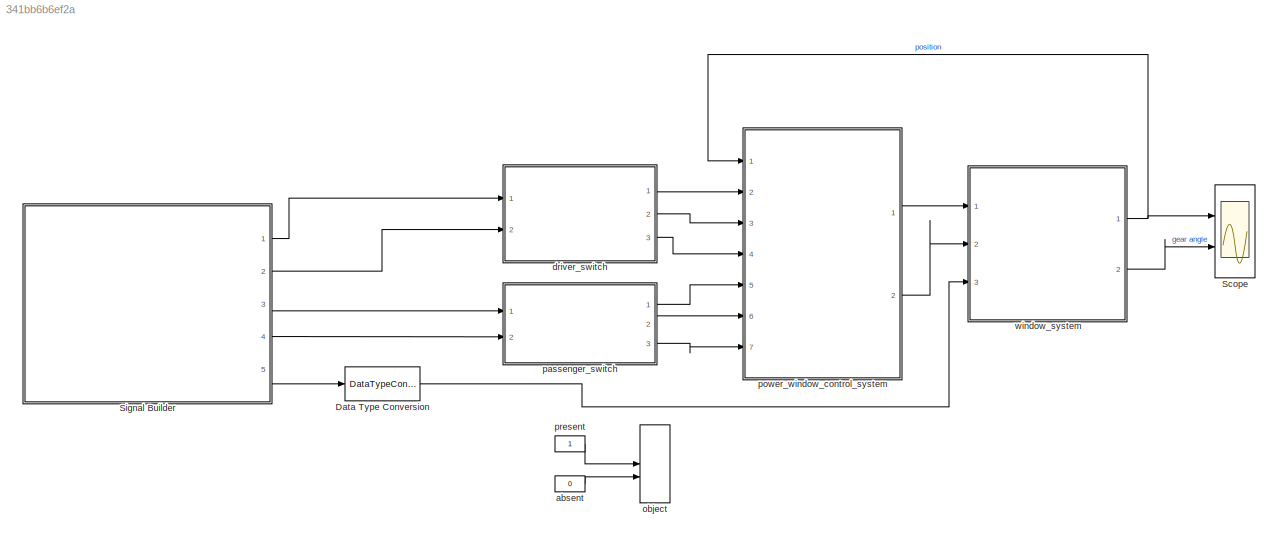
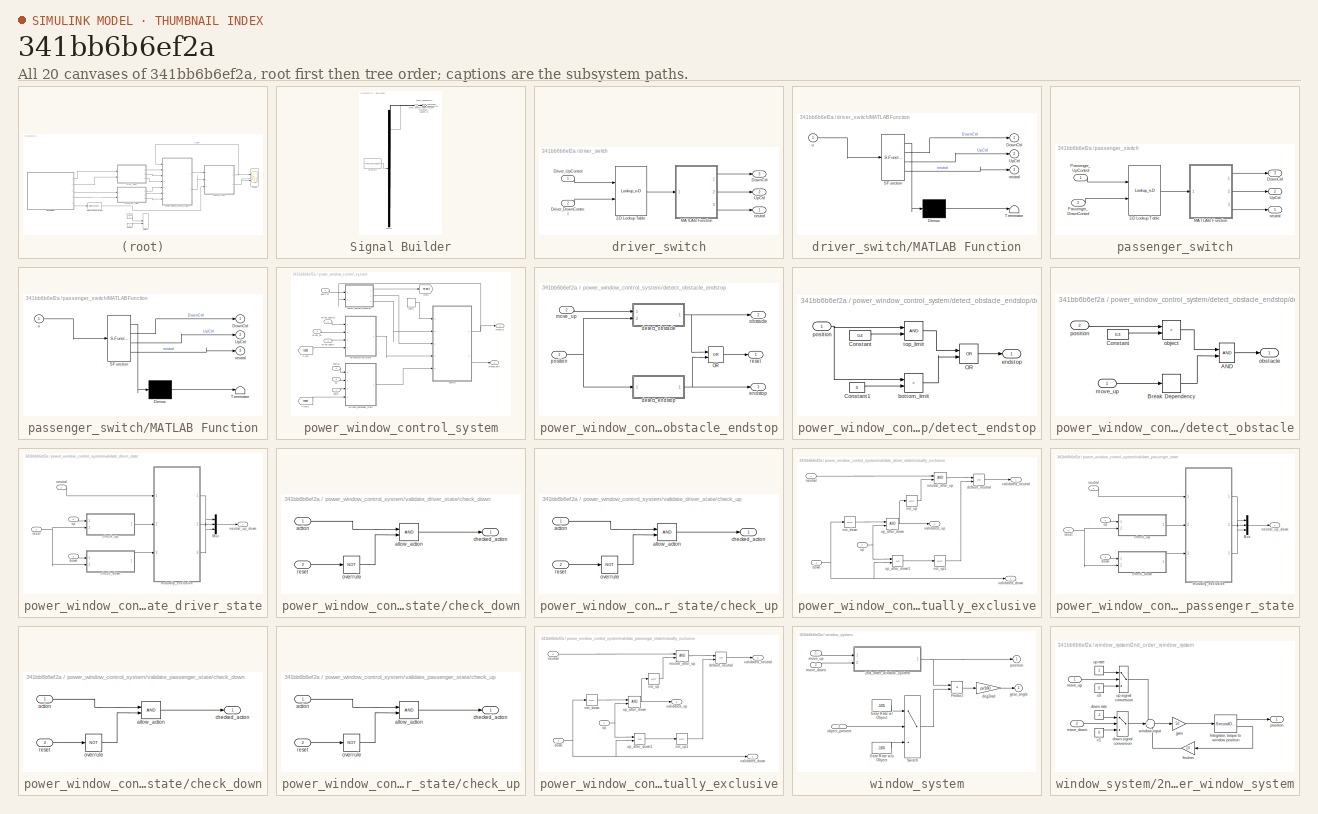
[diagram: thumbnail index - all 20 canvases of the model, root first then tree order]
MODEL slx_341bb6b6ef2a
KIND model
CONFIG AbsTol = auto
CONFIG EnableMultiTasking = off
CONFIG FixedStep = auto
CONFIG MaxStep = auto
CONFIG MinStep = auto
CONFIG RelTol = 1e-3
CONFIG SampleTimeConstraint = Unconstrained
CONFIG SolverName = ode23
CONFIG StartFcn = openscope
CONFIG StartTime = 0.0
CONFIG StopTime = 20
BLOCK [DataTypeConversion] Data Type Conversion
  OutDataTypeStr = boolean
  RndMeth = Floor
  SaturateOnIntegerOverflow = off
BLOCK [Scope] Scope
  Floating = off
  NumInputPorts = 2
  Ports = [2]
  ScopeSpecificationString = Simulink.scopes.TimeScopeBlockCfg('CurrentConfiguration', extmgr.ConfigurationSet(extmgr.Configuration('Core','General UI',true),extmgr.Configuration('Core','Source UI',true),extmgr.Configuration('Sources','WiredSimulink',true),extmgr.Configuration('Visuals','Time Domain',true,'SerializedDisplays',{struct('MinYLimReal','-0.05012','MaxYLimReal','0.45112','YLabelReal','','MinYLimMag','0.00000','MaxY...<+2034ch>
BLOCK [SubSystem] Signal Builder
  ClipboardFcn = sigbuilder_block('clipboard');
  CloseFcn = sigbuilder_block('close');
  ContinueFcn = sigbuilder_block('continue');
  CopyFcn = sigbuilder_block('copy');
  DeleteFcn = sigbuilder_block('delete');
  LoadFcn = sigbuilder_block('load');
  MaskHideContents = on
  ModelCloseFcn = sigbuilder_block('modelClose');
  NameChangeFcn = sigbuilder_block('namechange');
  OpenFcn = sigbuilder_block('open',[16.5 42.75 550.5 359.25 ]);
  PauseFcn = sigbuilder_block('pause');
  Ports = [0, 5]
  PreSaveFcn = sigbuilder_block('preSave');
  RequestExecContextInheritance = off
  StartFcn = sigbuilder_block('start');
  StopFcn = sigbuilder_block('stop');
  Tag = STV Subsys
BLOCK [Demux] Signal Builder/Demux
  DisplayOption = none
  Outputs = 5
  Ports = [1, 5]
  Tag = STV Demux
BLOCK [Outport] Signal Builder/Driver_DownControl
  Port = 2
  Tag = STV Outport
BLOCK [Outport] Signal Builder/Driver_UpControl
  Tag = STV Outport
BLOCK [FromWorkspace] Signal Builder/FromWs
  Tag = STV FromWs
  VariableName = tuvar
BLOCK [Outport] Signal Builder/Passenger_DownControl
  Port = 4
  Tag = STV Outport
BLOCK [Outport] Signal Builder/Passenger_UpControl
  Port = 3
  Tag = STV Outport
BLOCK [Outport] Signal Builder/objectPresent
  Port = 5
  Tag = STV Outport
BLOCK [Constant] absent
  Commented = on
  Value = 0
BLOCK [SubSystem] driver_switch
  Ports = [2, 3]
  RequestExecContextInheritance = off
BLOCK [Lookup_n-D] driver_switch/2-D Lookup Table
  BreakpointsForDimension1 = [0:1]
  BreakpointsForDimension2 = [0:1]
  InputPortMap = u0,u1
  InternalRulePriority = Speed
  Ports = [2, 1]
  RndMeth = Simplest
  Table = [0 -1;1 0]
BLOCK [Outport] driver_switch/DownCtrl
  Port = 3
BLOCK [Inport] driver_switch/Driver_DownControl
  Port = 2
BLOCK [Inport] driver_switch/Driver_UpControl
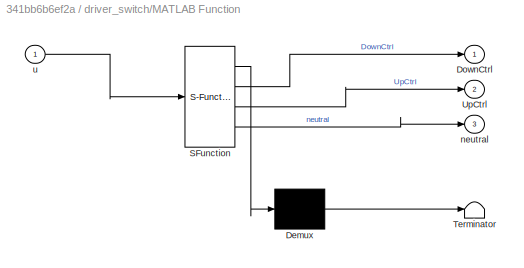
BLOCK [SubSystem] driver_switch/MATLAB Function
  ErrorFcn = Stateflow.Translate.translate
  PermitHierarchicalResolution = ExplicitOnly
  Ports = [1, 3]
  RequestExecContextInheritance = off
  SFBlockType = MATLAB Function
  TreatAsAtomicUnit = on
BLOCK [Demux] driver_switch/MATLAB Function/ Demux 
  Outputs = 1
  Ports = [1, 1]
BLOCK [S-Function] driver_switch/MATLAB Function/ SFunction 
  EnableBusSupport = on
  FunctionName = sf_sfun
  PortCounts = [1 4]
  Ports = [1, 4]
  SFcnIsStateOwnerBlock = off
  SFunctionDeploymentMode = off
  Tag = Stateflow S-Function 2
BLOCK [Terminator] driver_switch/MATLAB Function/ Terminator 
BLOCK [Outport] driver_switch/MATLAB Function/DownCtrl
BLOCK [Outport] driver_switch/MATLAB Function/UpCtrl
  Port = 2
BLOCK [Outport] driver_switch/MATLAB Function/neutral
  Port = 3
BLOCK [Inport] driver_switch/MATLAB Function/u
BLOCK [Outport] driver_switch/UpCtrl
  Port = 2
BLOCK [Outport] driver_switch/neutral
BLOCK [ManualSwitch] object
  Commented = on
BLOCK [SubSystem] passenger_switch
  Ports = [2, 3]
  RequestExecContextInheritance = off
BLOCK [Lookup_n-D] passenger_switch/2-D Lookup Table
  BreakpointsForDimension1 = [0:1]
  BreakpointsForDimension2 = [0:1]
  InputPortMap = u0,u1
  InternalRulePriority = Speed
  Ports = [2, 1]
  RndMeth = Simplest
  Table = [0 -1;1 0]
BLOCK [Outport] passenger_switch/DownCtrl
  Port = 3
BLOCK [SubSystem] passenger_switch/MATLAB Function
  ErrorFcn = Stateflow.Translate.translate
  PermitHierarchicalResolution = ExplicitOnly
  Ports = [1, 3]
  RequestExecContextInheritance = off
  SFBlockType = MATLAB Function
  TreatAsAtomicUnit = on
BLOCK [Demux] passenger_switch/MATLAB Function/ Demux 
  Outputs = 1
  Ports = [1, 1]
BLOCK [S-Function] passenger_switch/MATLAB Function/ SFunction 
  EnableBusSupport = on
  FunctionName = sf_sfun
  PortCounts = [1 4]
  Ports = [1, 4]
  SFcnIsStateOwnerBlock = off
  SFunctionDeploymentMode = off
  Tag = Stateflow S-Function 1
BLOCK [Terminator] passenger_switch/MATLAB Function/ Terminator 
BLOCK [Outport] passenger_switch/MATLAB Function/DownCtrl
BLOCK [Outport] passenger_switch/MATLAB Function/UpCtrl
  Port = 2
BLOCK [Outport] passenger_switch/MATLAB Function/neutral
  Port = 3
BLOCK [Inport] passenger_switch/MATLAB Function/u
BLOCK [Inport] passenger_switch/Passenger_DownControl
  Port = 2
BLOCK [Inport] passenger_switch/Passenger_UpControl
BLOCK [Outport] passenger_switch/UpCtrl
  Port = 2
BLOCK [Outport] passenger_switch/neutral
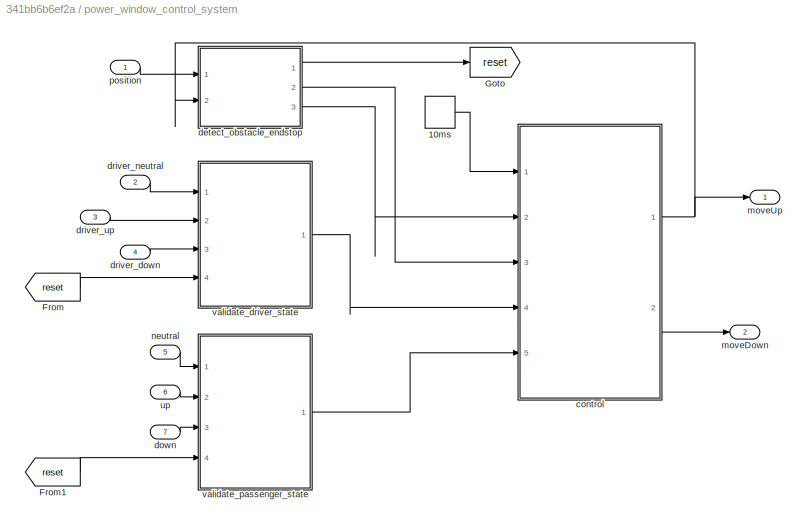
BLOCK [SubSystem] power_window_control_system
  Ports = [7, 2]
  RequestExecContextInheritance = off
BLOCK [DiscretePulseGenerator] power_window_control_system/10ms
  Ports = [0, 1]
  SampleTime = 10e-3
BLOCK [From] power_window_control_system/From
  GotoTag = reset
BLOCK [From] power_window_control_system/From1
  GotoTag = reset
BLOCK [Goto] power_window_control_system/Goto
  GotoTag = reset
BLOCK [ModelReference] power_window_control_system/control
  ModelNameDialog = control
  ModelReferenceVersion = 1.12
  PortSchema = {"entries":[{"content":{"sides":[{"content":{"connectorIds":["In1","In3","In2","In4","In5"]},"type":"ConnectorPlacement.EquallySpacedRectSide","uuid":"1ff5d317-0497-494f-a61b-2fc0f24ed70a"},{"content":{"connectorIds":["Out1","Out2"],"side":"RIGHT"},"type":"ConnectorPlacement.EquallySpacedRectSide","uuid":"3af128ce-8d16-44e6-af9b-8a4db41ce529"},{"content":{"connectorIds":[],"side":"TOP"},"type":"Co...<+415ch>
  Ports = [5, 2]
BLOCK [SubSystem] power_window_control_system/detect_obstacle_endstop
  Ports = [2, 3]
  RequestExecContextInheritance = off
BLOCK [Logic] power_window_control_system/detect_obstacle_endstop/OR
  AllPortsSameDT = off
  IconShape = distinctive
  Operator = OR
  OutDataTypeStr = boolean
  Ports = [2, 1]
BLOCK [SubSystem] power_window_control_system/detect_obstacle_endstop/detect_endstop
  Ports = [1, 1]
  RequestExecContextInheritance = off
BLOCK [Constant] power_window_control_system/detect_obstacle_endstop/detect_endstop/Constant
  Value = 0.4
BLOCK [Constant] power_window_control_system/detect_obstacle_endstop/detect_endstop/Constant1
  Value = 0
BLOCK [Logic] power_window_control_system/detect_obstacle_endstop/detect_endstop/OR
  AllPortsSameDT = off
  IconShape = distinctive
  Operator = OR
  OutDataTypeStr = boolean
  Ports = [2, 1]
BLOCK [RelationalOperator] power_window_control_system/detect_obstacle_endstop/detect_endstop/bottom_limit
  InputSameDT = off
  Operator = <
  OutDataTypeStr = boolean
  Ports = [2, 1]
  RndMeth = Simplest
BLOCK [Outport] power_window_control_system/detect_obstacle_endstop/detect_endstop/endstop
BLOCK [Inport] power_window_control_system/detect_obstacle_endstop/detect_endstop/position
BLOCK [RelationalOperator] power_window_control_system/detect_obstacle_endstop/detect_endstop/top_limit
  InputSameDT = off
  OutDataTypeStr = boolean
  Ports = [2, 1]
  RndMeth = Simplest
BLOCK [SubSystem] power_window_control_system/detect_obstacle_endstop/detect_obstacle
  Ports = [2, 1]
  RequestExecContextInheritance = off
BLOCK [Logic] power_window_control_system/detect_obstacle_endstop/detect_obstacle/AND
  AllPortsSameDT = off
  IconShape = distinctive
  OutDataTypeStr = boolean
  Ports = [2, 1]
BLOCK [Memory] power_window_control_system/detect_obstacle_endstop/detect_obstacle/Break Dependency
BLOCK [Constant] power_window_control_system/detect_obstacle_endstop/detect_obstacle/Constant
  Value = 0.3
BLOCK [Inport] power_window_control_system/detect_obstacle_endstop/detect_obstacle/move_up
BLOCK [RelationalOperator] power_window_control_system/detect_obstacle_endstop/detect_obstacle/object
  InputSameDT = off
  Operator = >
  OutDataTypeStr = boolean
  Ports = [2, 1]
  RndMeth = Simplest
BLOCK [Outport] power_window_control_system/detect_obstacle_endstop/detect_obstacle/obstacle
BLOCK [Inport] power_window_control_system/detect_obstacle_endstop/detect_obstacle/position
  Port = 2
BLOCK [Outport] power_window_control_system/detect_obstacle_endstop/endstop
  Port = 3
BLOCK [Inport] power_window_control_system/detect_obstacle_endstop/move_up
  Port = 2
BLOCK [Outport] power_window_control_system/detect_obstacle_endstop/obstacle
  Port = 2
BLOCK [Inport] power_window_control_system/detect_obstacle_endstop/position
BLOCK [Outport] power_window_control_system/detect_obstacle_endstop/reset
BLOCK [Inport] power_window_control_system/down
  Port = 7
BLOCK [Inport] power_window_control_system/driver_down
  Port = 4
BLOCK [Inport] power_window_control_system/driver_neutral
  Port = 2
BLOCK [Inport] power_window_control_system/driver_up
  Port = 3
BLOCK [Outport] power_window_control_system/moveDown
  Port = 2
BLOCK [Outport] power_window_control_system/moveUp
BLOCK [Inport] power_window_control_system/neutral
  Port = 5
BLOCK [Inport] power_window_control_system/position
BLOCK [Inport] power_window_control_system/up
  Port = 6
BLOCK [SubSystem] power_window_control_system/validate_driver_state
  Ports = [4, 1]
  RequestExecContextInheritance = off
BLOCK [Mux] power_window_control_system/validate_driver_state/Mux
  DisplayOption = bar
  Inputs = 3
  Ports = [3, 1]
BLOCK [SubSystem] power_window_control_system/validate_driver_state/check_down
  Ports = [2, 1]
  RequestExecContextInheritance = off
BLOCK [Inport] power_window_control_system/validate_driver_state/check_down/action
BLOCK [Logic] power_window_control_system/validate_driver_state/check_down/allow_action
  AllPortsSameDT = off
  IconShape = distinctive
  OutDataTypeStr = boolean
  Ports = [2, 1]
BLOCK [Outport] power_window_control_system/validate_driver_state/check_down/checked_action
BLOCK [Logic] power_window_control_system/validate_driver_state/check_down/overrule
  AllPortsSameDT = off
  IconShape = distinctive
  Operator = NOT
  OutDataTypeStr = boolean
  Ports = [1, 1]
BLOCK [Inport] power_window_control_system/validate_driver_state/check_down/reset
  Port = 2
BLOCK [SubSystem] power_window_control_system/validate_driver_state/check_up
  Ports = [2, 1]
  RequestExecContextInheritance = off
BLOCK [Inport] power_window_control_system/validate_driver_state/check_up/action
BLOCK [Logic] power_window_control_system/validate_driver_state/check_up/allow_action
  AllPortsSameDT = off
  IconShape = distinctive
  OutDataTypeStr = boolean
  Ports = [2, 1]
BLOCK [Outport] power_window_control_system/validate_driver_state/check_up/checked_action
BLOCK [Logic] power_window_control_system/validate_driver_state/check_up/overrule
  AllPortsSameDT = off
  IconShape = distinctive
  Operator = NOT
  OutDataTypeStr = boolean
  Ports = [1, 1]
BLOCK [Inport] power_window_control_system/validate_driver_state/check_up/reset
  Port = 2
BLOCK [Inport] power_window_control_system/validate_driver_state/down
  Port = 3
BLOCK [SubSystem] power_window_control_system/validate_driver_state/mutually_exclusive
  Ports = [3, 3]
  RequestExecContextInheritance = off
BLOCK [Logic] power_window_control_system/validate_driver_state/mutually_exclusive/default_neutral
  AllPortsSameDT = off
  IconShape = distinctive
  Operator = OR
  OutDataTypeStr = boolean
  Ports = [2, 1]
BLOCK [Inport] power_window_control_system/validate_driver_state/mutually_exclusive/down
  Port = 3
BLOCK [Inport] power_window_control_system/validate_driver_state/mutually_exclusive/neutral
BLOCK [Logic] power_window_control_system/validate_driver_state/mutually_exclusive/neutral_after_up
  AllPortsSameDT = off
  IconShape = distinctive
  OutDataTypeStr = boolean
  Ports = [2, 1]
BLOCK [Logic] power_window_control_system/validate_driver_state/mutually_exclusive/not_down
  AllPortsSameDT = off
  IconShape = distinctive
  Operator = NOT
  OutDataTypeStr = boolean
  Ports = [1, 1]
BLOCK [Logic] power_window_control_system/validate_driver_state/mutually_exclusive/not_up
  AllPortsSameDT = off
  IconShape = distinctive
  Operator = NOT
  OutDataTypeStr = boolean
  Ports = [1, 1]
BLOCK [Logic] power_window_control_system/validate_driver_state/mutually_exclusive/not_up1
  AllPortsSameDT = off
  IconShape = distinctive
  Operator = NOT
  OutDataTypeStr = boolean
  Ports = [1, 1]
BLOCK [Inport] power_window_control_system/validate_driver_state/mutually_exclusive/up
  Port = 2
BLOCK [Logic] power_window_control_system/validate_driver_state/mutually_exclusive/up_after_down
  AllPortsSameDT = off
  IconShape = distinctive
  OutDataTypeStr = boolean
  Ports = [2, 1]
BLOCK [Logic] power_window_control_system/validate_driver_state/mutually_exclusive/up_after_down1
  AllPortsSameDT = off
  IconShape = distinctive
  Operator = OR
  OutDataTypeStr = boolean
  Ports = [2, 1]
BLOCK [Outport] power_window_control_system/validate_driver_state/mutually_exclusive/validated_down
  Port = 3
BLOCK [Outport] power_window_control_system/validate_driver_state/mutually_exclusive/validated_neutral
BLOCK [Outport] power_window_control_system/validate_driver_state/mutually_exclusive/validated_up
  Port = 2
BLOCK [Inport] power_window_control_system/validate_driver_state/neutral
BLOCK [Outport] power_window_control_system/validate_driver_state/neutral_up_down
BLOCK [Inport] power_window_control_system/validate_driver_state/reset
  Port = 4
BLOCK [Inport] power_window_control_system/validate_driver_state/up
  Port = 2
BLOCK [SubSystem] power_window_control_system/validate_passenger_state
  Ports = [4, 1]
  RequestExecContextInheritance = off
BLOCK [Mux] power_window_control_system/validate_passenger_state/Mux
  DisplayOption = bar
  Inputs = 3
  Ports = [3, 1]
BLOCK [SubSystem] power_window_control_system/validate_passenger_state/check_down
  Ports = [2, 1]
  RequestExecContextInheritance = off
BLOCK [Inport] power_window_control_system/validate_passenger_state/check_down/action
BLOCK [Logic] power_window_control_system/validate_passenger_state/check_down/allow_action
  AllPortsSameDT = off
  IconShape = distinctive
  OutDataTypeStr = boolean
  Ports = [2, 1]
BLOCK [Outport] power_window_control_system/validate_passenger_state/check_down/checked_action
BLOCK [Logic] power_window_control_system/validate_passenger_state/check_down/overrule
  AllPortsSameDT = off
  IconShape = distinctive
  Operator = NOT
  OutDataTypeStr = boolean
  Ports = [1, 1]
BLOCK [Inport] power_window_control_system/validate_passenger_state/check_down/reset
  Port = 2
BLOCK [SubSystem] power_window_control_system/validate_passenger_state/check_up
  Ports = [2, 1]
  RequestExecContextInheritance = off
BLOCK [Inport] power_window_control_system/validate_passenger_state/check_up/action
BLOCK [Logic] power_window_control_system/validate_passenger_state/check_up/allow_action
  AllPortsSameDT = off
  IconShape = distinctive
  OutDataTypeStr = boolean
  Ports = [2, 1]
BLOCK [Outport] power_window_control_system/validate_passenger_state/check_up/checked_action
BLOCK [Logic] power_window_control_system/validate_passenger_state/check_up/overrule
  AllPortsSameDT = off
  IconShape = distinctive
  Operator = NOT
  OutDataTypeStr = boolean
  Ports = [1, 1]
BLOCK [Inport] power_window_control_system/validate_passenger_state/check_up/reset
  Port = 2
BLOCK [Inport] power_window_control_system/validate_passenger_state/down
  Port = 3
BLOCK [SubSystem] power_window_control_system/validate_passenger_state/mutually_exclusive
  Ports = [3, 3]
  RequestExecContextInheritance = off
BLOCK [Logic] power_window_control_system/validate_passenger_state/mutually_exclusive/default_neutral
  AllPortsSameDT = off
  IconShape = distinctive
  Operator = OR
  OutDataTypeStr = boolean
  Ports = [2, 1]
BLOCK [Inport] power_window_control_system/validate_passenger_state/mutually_exclusive/down
  Port = 3
BLOCK [Inport] power_window_control_system/validate_passenger_state/mutually_exclusive/neutral
BLOCK [Logic] power_window_control_system/validate_passenger_state/mutually_exclusive/neutral_after_up
  AllPortsSameDT = off
  IconShape = distinctive
  OutDataTypeStr = boolean
  Ports = [2, 1]
BLOCK [Logic] power_window_control_system/validate_passenger_state/mutually_exclusive/not_down
  AllPortsSameDT = off
  IconShape = distinctive
  Operator = NOT
  OutDataTypeStr = boolean
  Ports = [1, 1]
BLOCK [Logic] power_window_control_system/validate_passenger_state/mutually_exclusive/not_up
  AllPortsSameDT = off
  IconShape = distinctive
  Operator = NOT
  OutDataTypeStr = boolean
  Ports = [1, 1]
BLOCK [Logic] power_window_control_system/validate_passenger_state/mutually_exclusive/not_up1
  AllPortsSameDT = off
  IconShape = distinctive
  Operator = NOT
  OutDataTypeStr = boolean
  Ports = [1, 1]
BLOCK [Inport] power_window_control_system/validate_passenger_state/mutually_exclusive/up
  Port = 2
BLOCK [Logic] power_window_control_system/validate_passenger_state/mutually_exclusive/up_after_down
  AllPortsSameDT = off
  IconShape = distinctive
  OutDataTypeStr = boolean
  Ports = [2, 1]
BLOCK [Logic] power_window_control_system/validate_passenger_state/mutually_exclusive/up_after_down1
  AllPortsSameDT = off
  IconShape = distinctive
  Operator = OR
  OutDataTypeStr = boolean
  Ports = [2, 1]
BLOCK [Outport] power_window_control_system/validate_passenger_state/mutually_exclusive/validated_down
  Port = 3
BLOCK [Outport] power_window_control_system/validate_passenger_state/mutually_exclusive/validated_neutral
BLOCK [Outport] power_window_control_system/validate_passenger_state/mutually_exclusive/validated_up
  Port = 2
BLOCK [Inport] power_window_control_system/validate_passenger_state/neutral
BLOCK [Outport] power_window_control_system/validate_passenger_state/neutral_up_down
BLOCK [Inport] power_window_control_system/validate_passenger_state/reset
  Port = 4
BLOCK [Inport] power_window_control_system/validate_passenger_state/up
  Port = 2
BLOCK [Constant] present
  Commented = on
BLOCK [SubSystem] window_system
  Ports = [3, 2]
  RequestExecContextInheritance = off
BLOCK [SubSystem] window_system/2nd_order_window_system
  Ports = [2, 1]
  RequestExecContextInheritance = off
BLOCK [SecondOrderIntegrator] window_system/2nd_order_window_system/Integrator, torque to window position 
  Ports = [1, 2]
BLOCK [Constant] window_system/2nd_order_window_system/c0
  Value = 0
BLOCK [Constant] window_system/2nd_order_window_system/c1
  Value = 0
BLOCK [Constant] window_system/2nd_order_window_system/down rate
  NameLocation = top
  Value = -1
BLOCK [Switch] window_system/2nd_order_window_system/down signal conversion
  Threshold = 0.5
BLOCK [Gain] window_system/2nd_order_window_system/friction
  Gain = 10
  OutDataTypeStr = Inherit: Same as input
  ParamDataTypeStr = Inherit: Same as input
  SaturateOnIntegerOverflow = on
BLOCK [Gain] window_system/2nd_order_window_system/gain
  Gain = 50
  OutDataTypeStr = Inherit: Same as input
  ParamDataTypeStr = Inherit: Same as input
  SaturateOnIntegerOverflow = on
BLOCK [Inport] window_system/2nd_order_window_system/move_down
  OutDataTypeStr = boolean
  Port = 2
  PortDimensions = 1
  Unit = 1
BLOCK [Inport] window_system/2nd_order_window_system/move_up
  OutDataTypeStr = boolean
  PortDimensions = 1
  Unit = 1
BLOCK [Outport] window_system/2nd_order_window_system/position
  OutDataTypeStr = double
  PortDimensions = 1
  Unit = meter
  VectorParamsAs1DForOutWhenUnconnected = off
BLOCK [Constant] window_system/2nd_order_window_system/up rate
  NameLocation = top
BLOCK [Switch] window_system/2nd_order_window_system/up signal conversion
  Threshold = 0.5
BLOCK [Sum] window_system/2nd_order_window_system/window input
  InputSameDT = on
  Inputs = ++-
  OutDataTypeStr = Inherit: Same as first input
  Ports = [3, 1]
  SaturateOnIntegerOverflow = on
BLOCK [Constant] window_system/Gear Rate w// Object
  AttributesFormatString = Units: deg/m
  Value = -105
BLOCK [Constant] window_system/Gear Rate w//o Object
  AttributesFormatString = Units: deg/m
  Value = -160
BLOCK [Product] window_system/Product
  Ports = [2, 1]
BLOCK [Switch] window_system/Switch
  Criteria = u2 ~= 0
  InputSameDT = off
  SaturateOnIntegerOverflow = off
BLOCK [Gain] window_system/deg2rad
  Gain = pi/180
BLOCK [Outport] window_system/gear_angle
  OutDataTypeStr = double
  Port = 2
  PortDimensions = 1
  Unit = rad
  VectorParamsAs1DForOutWhenUnconnected = off
BLOCK [Inport] window_system/move_down
  OutDataTypeStr = boolean
  Port = 2
  PortDimensions = 1
  Unit = 1
BLOCK [Inport] window_system/move_up
  OutDataTypeStr = boolean
  PortDimensions = 1
  Unit = 1
BLOCK [Inport] window_system/object_present
  OutDataTypeStr = boolean
  Port = 3
  PortDimensions = 1
  Unit = 1
BLOCK [Outport] window_system/position
  OutDataTypeStr = double
  PortDimensions = 1
  Unit = m
  VectorParamsAs1DForOutWhenUnconnected = off
LINE Data Type Conversion:1 -> window_system:3
LINE Signal Builder:1 -> driver_switch:1
LINE Signal Builder:2 -> driver_switch:2
LINE Signal Builder:3 -> passenger_switch:1
LINE Signal Builder:4 -> passenger_switch:2
LINE Signal Builder:5 -> Data Type Conversion:1
LINE absent:1 -> object:2
LINE driver_switch/2-D Lookup Table:1 -> driver_switch/MATLAB Function:1
LINE driver_switch/Driver_DownControl:1 -> driver_switch/2-D Lookup Table:2
LINE driver_switch/Driver_UpControl:1 -> driver_switch/2-D Lookup Table:1
LINE driver_switch/MATLAB Function:1 -> driver_switch/DownCtrl:1
LINE driver_switch/MATLAB Function:2 -> driver_switch/UpCtrl:1
LINE driver_switch/MATLAB Function:3 -> driver_switch/neutral:1
LINE driver_switch:1 -> power_window_control_system:2
LINE driver_switch:2 -> power_window_control_system:3
LINE driver_switch:3 -> power_window_control_system:4
LINE passenger_switch/2-D Lookup Table:1 -> passenger_switch/MATLAB Function:1
LINE passenger_switch/MATLAB Function:1 -> passenger_switch/DownCtrl:1
LINE passenger_switch/MATLAB Function:2 -> passenger_switch/UpCtrl:1
LINE passenger_switch/MATLAB Function:3 -> passenger_switch/neutral:1
LINE passenger_switch/Passenger_DownControl:1 -> passenger_switch/2-D Lookup Table:2
LINE passenger_switch/Passenger_UpControl:1 -> passenger_switch/2-D Lookup Table:1
LINE passenger_switch:1 -> power_window_control_system:5
LINE passenger_switch:2 -> power_window_control_system:6
LINE passenger_switch:3 -> power_window_control_system:7
LINE power_window_control_system/10ms:1 -> power_window_control_system/control:1
LINE power_window_control_system/From1:1 -> power_window_control_system/validate_passenger_state:4
LINE power_window_control_system/From:1 -> power_window_control_system/validate_driver_state:4
NET power_window_control_system/control:1 -> power_window_control_system/detect_obstacle_endstop:2, power_window_control_system/moveUp:1
LINE power_window_control_system/control:2 -> power_window_control_system/moveDown:1
LINE power_window_control_system/detect_obstacle_endstop/OR:1 -> power_window_control_system/detect_obstacle_endstop/reset:1
LINE power_window_control_system/detect_obstacle_endstop/detect_endstop/Constant1:1 -> power_window_control_system/detect_obstacle_endstop/detect_endstop/bottom_limit:2
LINE power_window_control_system/detect_obstacle_endstop/detect_endstop/Constant:1 -> power_window_control_system/detect_obstacle_endstop/detect_endstop/top_limit:2
LINE power_window_control_system/detect_obstacle_endstop/detect_endstop/OR:1 -> power_window_control_system/detect_obstacle_endstop/detect_endstop/endstop:1
LINE power_window_control_system/detect_obstacle_endstop/detect_endstop/bottom_limit:1 -> power_window_control_system/detect_obstacle_endstop/detect_endstop/OR:2
NET power_window_control_system/detect_obstacle_endstop/detect_endstop/position:1 -> power_window_control_system/detect_obstacle_endstop/detect_endstop/bottom_limit:1, power_window_control_system/detect_obstacle_endstop/detect_endstop/top_limit:1
LINE power_window_control_system/detect_obstacle_endstop/detect_endstop/top_limit:1 -> power_window_control_system/detect_obstacle_endstop/detect_endstop/OR:1
NET power_window_control_system/detect_obstacle_endstop/detect_endstop:1 -> power_window_control_system/detect_obstacle_endstop/OR:2, power_window_control_system/detect_obstacle_endstop/endstop:1
LINE power_window_control_system/detect_obstacle_endstop/detect_obstacle/AND:1 -> power_window_control_system/detect_obstacle_endstop/detect_obstacle/obstacle:1
LINE power_window_control_system/detect_obstacle_endstop/detect_obstacle/Break Dependency:1 -> power_window_control_system/detect_obstacle_endstop/detect_obstacle/AND:2
LINE power_window_control_system/detect_obstacle_endstop/detect_obstacle/Constant:1 -> power_window_control_system/detect_obstacle_endstop/detect_obstacle/object:2
LINE power_window_control_system/detect_obstacle_endstop/detect_obstacle/move_up:1 -> power_window_control_system/detect_obstacle_endstop/detect_obstacle/Break Dependency:1
LINE power_window_control_system/detect_obstacle_endstop/detect_obstacle/object:1 -> power_window_control_system/detect_obstacle_endstop/detect_obstacle/AND:1
LINE power_window_control_system/detect_obstacle_endstop/detect_obstacle/position:1 -> power_window_control_system/detect_obstacle_endstop/detect_obstacle/object:1
NET power_window_control_system/detect_obstacle_endstop/detect_obstacle:1 -> power_window_control_system/detect_obstacle_endstop/OR:1, power_window_control_system/detect_obstacle_endstop/obstacle:1
LINE power_window_control_system/detect_obstacle_endstop/move_up:1 -> power_window_control_system/detect_obstacle_endstop/detect_obstacle:1
NET power_window_control_system/detect_obstacle_endstop/position:1 -> power_window_control_system/detect_obstacle_endstop/detect_endstop:1, power_window_control_system/detect_obstacle_endstop/detect_obstacle:2
LINE power_window_control_system/detect_obstacle_endstop:1 -> power_window_control_system/Goto:1
LINE power_window_control_system/detect_obstacle_endstop:2 -> power_window_control_system/control:3
LINE power_window_control_system/detect_obstacle_endstop:3 -> power_window_control_system/control:2
LINE power_window_control_system/down:1 -> power_window_control_system/validate_passenger_state:3
LINE power_window_control_system/driver_down:1 -> power_window_control_system/validate_driver_state:3
LINE power_window_control_system/driver_neutral:1 -> power_window_control_system/validate_driver_state:1
LINE power_window_control_system/driver_up:1 -> power_window_control_system/validate_driver_state:2
LINE power_window_control_system/neutral:1 -> power_window_control_system/validate_passenger_state:1
LINE power_window_control_system/position:1 -> power_window_control_system/detect_obstacle_endstop:1
LINE power_window_control_system/up:1 -> power_window_control_system/validate_passenger_state:2
LINE power_window_control_system/validate_driver_state/Mux:1 -> power_window_control_system/validate_driver_state/neutral_up_down:1
LINE power_window_control_system/validate_driver_state/check_down/action:1 -> power_window_control_system/validate_driver_state/check_down/allow_action:1
LINE power_window_control_system/validate_driver_state/check_down/allow_action:1 -> power_window_control_system/validate_driver_state/check_down/checked_action:1
LINE power_window_control_system/validate_driver_state/check_down/overrule:1 -> power_window_control_system/validate_driver_state/check_down/allow_action:2
LINE power_window_control_system/validate_driver_state/check_down/reset:1 -> power_window_control_system/validate_driver_state/check_down/overrule:1
LINE power_window_control_system/validate_driver_state/check_down:1 -> power_window_control_system/validate_driver_state/mutually_exclusive:3
LINE power_window_control_system/validate_driver_state/check_up/action:1 -> power_window_control_system/validate_driver_state/check_up/allow_action:1
LINE power_window_control_system/validate_driver_state/check_up/allow_action:1 -> power_window_control_system/validate_driver_state/check_up/checked_action:1
LINE power_window_control_system/validate_driver_state/check_up/overrule:1 -> power_window_control_system/validate_driver_state/check_up/allow_action:2
LINE power_window_control_system/validate_driver_state/check_up/reset:1 -> power_window_control_system/validate_driver_state/check_up/overrule:1
LINE power_window_control_system/validate_driver_state/check_up:1 -> power_window_control_system/validate_driver_state/mutually_exclusive:2
LINE power_window_control_system/validate_driver_state/down:1 -> power_window_control_system/validate_driver_state/check_down:1
LINE power_window_control_system/validate_driver_state/mutually_exclusive/default_neutral:1 -> power_window_control_system/validate_driver_state/mutually_exclusive/validated_neutral:1
NET power_window_control_system/validate_driver_state/mutually_exclusive/down:1 -> power_window_control_system/validate_driver_state/mutually_exclusive/not_down:1, power_window_control_system/validate_driver_state/mutually_exclusive/up_after_down1:2, power_window_control_system/validate_driver_state/mutually_exclusive/validated_down:1
LINE power_window_control_system/validate_driver_state/mutually_exclusive/neutral:1 -> power_window_control_system/validate_driver_state/mutually_exclusive/neutral_after_up:1
LINE power_window_control_system/validate_driver_state/mutually_exclusive/neutral_after_up:1 -> power_window_control_system/validate_driver_state/mutually_exclusive/default_neutral:1
LINE power_window_control_system/validate_driver_state/mutually_exclusive/not_down:1 -> power_window_control_system/validate_driver_state/mutually_exclusive/up_after_down:1
LINE power_window_control_system/validate_driver_state/mutually_exclusive/not_up1:1 -> power_window_control_system/validate_driver_state/mutually_exclusive/default_neutral:2
LINE power_window_control_system/validate_driver_state/mutually_exclusive/not_up:1 -> power_window_control_system/validate_driver_state/mutually_exclusive/neutral_after_up:2
NET power_window_control_system/validate_driver_state/mutually_exclusive/up:1 -> power_window_control_system/validate_driver_state/mutually_exclusive/up_after_down1:1, power_window_control_system/validate_driver_state/mutually_exclusive/up_after_down:2
LINE power_window_control_system/validate_driver_state/mutually_exclusive/up_after_down1:1 -> power_window_control_system/validate_driver_state/mutually_exclusive/not_up1:1
NET power_window_control_system/validate_driver_state/mutually_exclusive/up_after_down:1 -> power_window_control_system/validate_driver_state/mutually_exclusive/not_up:1, power_window_control_system/validate_driver_state/mutually_exclusive/validated_up:1
LINE power_window_control_system/validate_driver_state/mutually_exclusive:1 -> power_window_control_system/validate_driver_state/Mux:1
LINE power_window_control_system/validate_driver_state/mutually_exclusive:2 -> power_window_control_system/validate_driver_state/Mux:2
LINE power_window_control_system/validate_driver_state/mutually_exclusive:3 -> power_window_control_system/validate_driver_state/Mux:3
LINE power_window_control_system/validate_driver_state/neutral:1 -> power_window_control_system/validate_driver_state/mutually_exclusive:1
NET power_window_control_system/validate_driver_state/reset:1 -> power_window_control_system/validate_driver_state/check_down:2, power_window_control_system/validate_driver_state/check_up:2
LINE power_window_control_system/validate_driver_state/up:1 -> power_window_control_system/validate_driver_state/check_up:1
LINE power_window_control_system/validate_driver_state:1 -> power_window_control_system/control:4
LINE power_window_control_system/validate_passenger_state/Mux:1 -> power_window_control_system/validate_passenger_state/neutral_up_down:1
LINE power_window_control_system/validate_passenger_state/check_down/action:1 -> power_window_control_system/validate_passenger_state/check_down/allow_action:1
LINE power_window_control_system/validate_passenger_state/check_down/allow_action:1 -> power_window_control_system/validate_passenger_state/check_down/checked_action:1
LINE power_window_control_system/validate_passenger_state/check_down/overrule:1 -> power_window_control_system/validate_passenger_state/check_down/allow_action:2
LINE power_window_control_system/validate_passenger_state/check_down/reset:1 -> power_window_control_system/validate_passenger_state/check_down/overrule:1
LINE power_window_control_system/validate_passenger_state/check_down:1 -> power_window_control_system/validate_passenger_state/mutually_exclusive:3
LINE power_window_control_system/validate_passenger_state/check_up/action:1 -> power_window_control_system/validate_passenger_state/check_up/allow_action:1
LINE power_window_control_system/validate_passenger_state/check_up/allow_action:1 -> power_window_control_system/validate_passenger_state/check_up/checked_action:1
LINE power_window_control_system/validate_passenger_state/check_up/overrule:1 -> power_window_control_system/validate_passenger_state/check_up/allow_action:2
LINE power_window_control_system/validate_passenger_state/check_up/reset:1 -> power_window_control_system/validate_passenger_state/check_up/overrule:1
LINE power_window_control_system/validate_passenger_state/check_up:1 -> power_window_control_system/validate_passenger_state/mutually_exclusive:2
LINE power_window_control_system/validate_passenger_state/down:1 -> power_window_control_system/validate_passenger_state/check_down:1
LINE power_window_control_system/validate_passenger_state/mutually_exclusive/default_neutral:1 -> power_window_control_system/validate_passenger_state/mutually_exclusive/validated_neutral:1
NET power_window_control_system/validate_passenger_state/mutually_exclusive/down:1 -> power_window_control_system/validate_passenger_state/mutually_exclusive/not_down:1, power_window_control_system/validate_passenger_state/mutually_exclusive/up_after_down1:2, power_window_control_system/validate_passenger_state/mutually_exclusive/validated_down:1
LINE power_window_control_system/validate_passenger_state/mutually_exclusive/neutral:1 -> power_window_control_system/validate_passenger_state/mutually_exclusive/neutral_after_up:1
LINE power_window_control_system/validate_passenger_state/mutually_exclusive/neutral_after_up:1 -> power_window_control_system/validate_passenger_state/mutually_exclusive/default_neutral:1
LINE power_window_control_system/validate_passenger_state/mutually_exclusive/not_down:1 -> power_window_control_system/validate_passenger_state/mutually_exclusive/up_after_down:1
LINE power_window_control_system/validate_passenger_state/mutually_exclusive/not_up1:1 -> power_window_control_system/validate_passenger_state/mutually_exclusive/default_neutral:2
LINE power_window_control_system/validate_passenger_state/mutually_exclusive/not_up:1 -> power_window_control_system/validate_passenger_state/mutually_exclusive/neutral_after_up:2
NET power_window_control_system/validate_passenger_state/mutually_exclusive/up:1 -> power_window_control_system/validate_passenger_state/mutually_exclusive/up_after_down1:1, power_window_control_system/validate_passenger_state/mutually_exclusive/up_after_down:2
LINE power_window_control_system/validate_passenger_state/mutually_exclusive/up_after_down1:1 -> power_window_control_system/validate_passenger_state/mutually_exclusive/not_up1:1
NET power_window_control_system/validate_passenger_state/mutually_exclusive/up_after_down:1 -> power_window_control_system/validate_passenger_state/mutually_exclusive/not_up:1, power_window_control_system/validate_passenger_state/mutually_exclusive/validated_up:1
LINE power_window_control_system/validate_passenger_state/mutually_exclusive:1 -> power_window_control_system/validate_passenger_state/Mux:1
LINE power_window_control_system/validate_passenger_state/mutually_exclusive:2 -> power_window_control_system/validate_passenger_state/Mux:2
LINE power_window_control_system/validate_passenger_state/mutually_exclusive:3 -> power_window_control_system/validate_passenger_state/Mux:3
LINE power_window_control_system/validate_passenger_state/neutral:1 -> power_window_control_system/validate_passenger_state/mutually_exclusive:1
NET power_window_control_system/validate_passenger_state/reset:1 -> power_window_control_system/validate_passenger_state/check_down:2, power_window_control_system/validate_passenger_state/check_up:2
LINE power_window_control_system/validate_passenger_state/up:1 -> power_window_control_system/validate_passenger_state/check_up:1
LINE power_window_control_system/validate_passenger_state:1 -> power_window_control_system/control:5
LINE power_window_control_system:1 -> window_system:1
LINE power_window_control_system:2 -> window_system:2
LINE present:1 -> object:1
LINE window_system/2nd_order_window_system/Integrator, torque to window position :1 -> window_system/2nd_order_window_system/position:1
LINE window_system/2nd_order_window_system/Integrator, torque to window position :2 -> window_system/2nd_order_window_system/friction:1
LINE window_system/2nd_order_window_system/c0:1 -> window_system/2nd_order_window_system/up signal conversion:3
LINE window_system/2nd_order_window_system/c1:1 -> window_system/2nd_order_window_system/down signal conversion:3
LINE window_system/2nd_order_window_system/down rate:1 -> window_system/2nd_order_window_system/down signal conversion:1
LINE window_system/2nd_order_window_system/down signal conversion:1 -> window_system/2nd_order_window_system/window input:2
LINE window_system/2nd_order_window_system/friction:1 -> window_system/2nd_order_window_system/window input:3
LINE window_system/2nd_order_window_system/gain:1 -> window_system/2nd_order_window_system/Integrator, torque to window position :1
LINE window_system/2nd_order_window_system/move_down:1 -> window_system/2nd_order_window_system/down signal conversion:2
LINE window_system/2nd_order_window_system/move_up:1 -> window_system/2nd_order_window_system/up signal conversion:2
LINE window_system/2nd_order_window_system/up rate:1 -> window_system/2nd_order_window_system/up signal conversion:1
LINE window_system/2nd_order_window_system/up signal conversion:1 -> window_system/2nd_order_window_system/window input:1
LINE window_system/2nd_order_window_system/window input:1 -> window_system/2nd_order_window_system/gain:1
NET window_system/2nd_order_window_system:1 -> window_system/Product:1, window_system/position:1
LINE window_system/Gear Rate w// Object:1 -> window_system/Switch:1
LINE window_system/Gear Rate w//o Object:1 -> window_system/Switch:3
LINE window_system/Product:1 -> window_system/deg2rad:1
LINE window_system/Switch:1 -> window_system/Product:2
LINE window_system/deg2rad:1 -> window_system/gear_angle:1
LINE window_system/move_down:1 -> window_system/2nd_order_window_system:2
LINE window_system/move_up:1 -> window_system/2nd_order_window_system:1
LINE window_system/object_present:1 -> window_system/Switch:2
NET window_system:1 -> Scope:1, power_window_control_system:1
LINE window_system:2 -> Scope:2
note: NET lines group one-source signal fan-out (src -> all destinations, sorted); 1:1 wires keep LINE
CHART driver_switch/MATLAB Function states=1 transitions=1
  STATE_LABEL 'eML_blk_kernel()'
  STATE_LABEL 'SCRIPT:\nfunction [DownCtrl,UpCtrl,neutral] = fcn(u)\nDownCtrl=0;UpCtrl=0;neutral=0;\nif(u == -1)\n    DownCtrl = 1;\nelseif(u==1)\n    UpCtrl=1;\nelse\n    neutral = 1;\nend\nend'
CHART passenger_switch/MATLAB Function states=1 transitions=1
  STATE_LABEL 'eML_blk_kernel()'
  STATE_LABEL 'SCRIPT:\nfunction [DownCtrl,UpCtrl,neutral] = fcn(u)\nDownCtrl=0;UpCtrl=0;neutral=0;\nif(u == -1)\n    DownCtrl = 1;\nelseif(u==1)\n    UpCtrl=1;\nelse\n    neutral = 1;\nend\nend'
CHART  states=0 transitions=0
CHART  states=0 transitions=0
